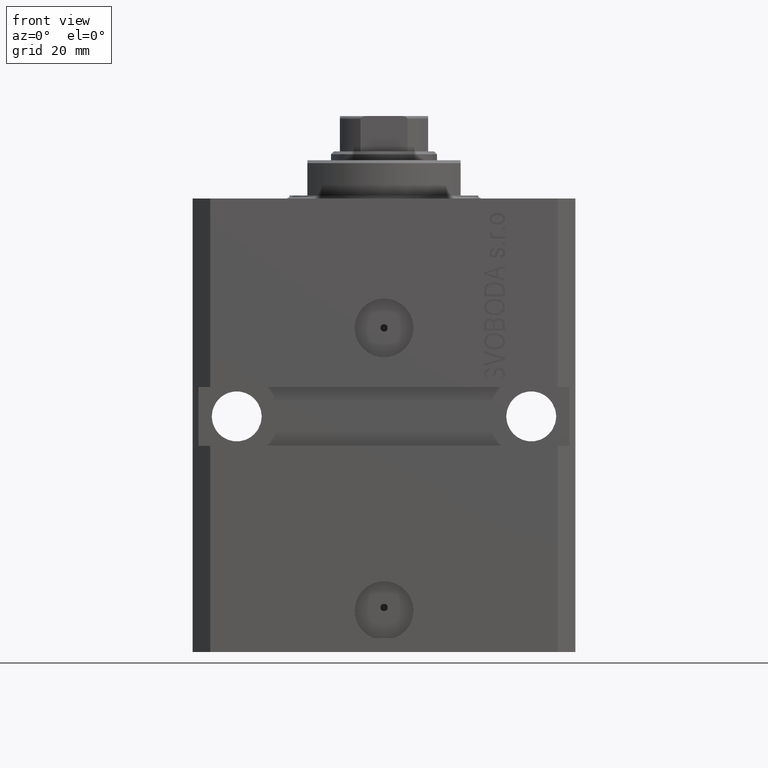
[diagram: clean part render]
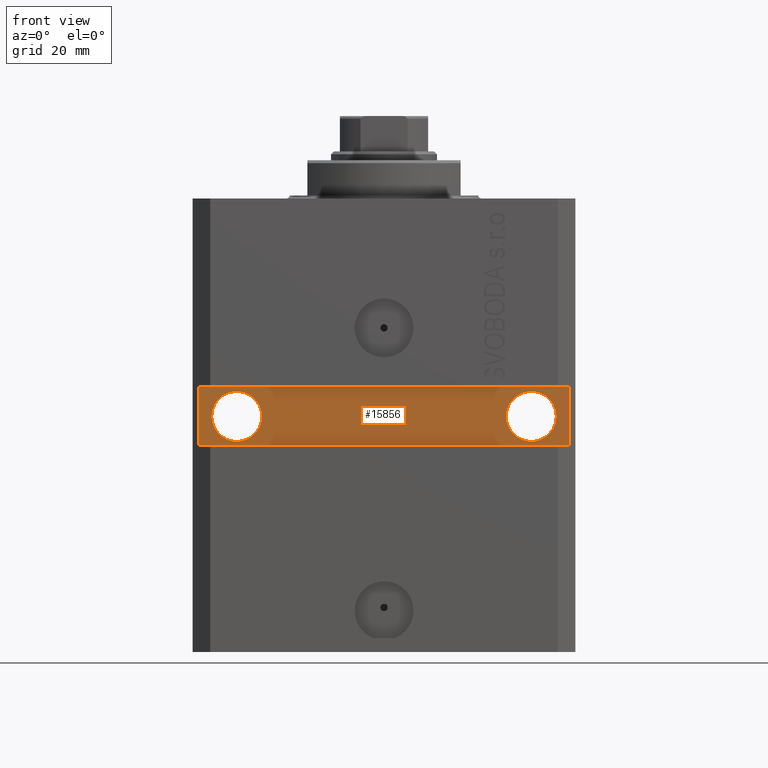
[diagram: same view with one face highlighted and labeled with its STEP entity id]
A machine part, front view. The second image highlights one B-rep face of the part: STEP entity #15856.
In plain terms, the highlighted planar face has unit normal (0, -1, 0).
Its self-contained STEP definition (entity closure, byte-faithful):
#181 = VERTEX_POINT ( 'NONE', #16915 ) ;
#200 = EDGE_CURVE ( 'NONE', #30496, #11029, #43470, .T. ) ;
#388 = DIRECTION ( 'NONE',  ( 1.394545208792185644E-16, -1.000000000000000000, 1.232595164407830946E-32 ) ) ;
#804 = CARTESIAN_POINT ( 'NONE',  ( -24.99999999999999289, -20.49999999999950262, -37.00000000000000000 ) ) ;
#868 = DIRECTION ( 'NONE',  ( 1.000000000000000000, 0.000000000000000000, 0.000000000000000000 ) ) ;
#942 = CARTESIAN_POINT ( 'NONE',  ( 29.24999999998905764, -20.49999999999949551, -36.99999999999999289 ) ) ;
#1659 = ORIENTED_EDGE ( 'NONE', *, *, #13771, .F. ) ;
#2871 = VECTOR ( 'NONE', #9926, 1000.000000000000000 ) ;
#3465 = LINE ( 'NONE', #36357, #39360 ) ;
#3545 = VERTEX_POINT ( 'NONE', #41543 ) ;
#4062 = EDGE_LOOP ( 'NONE', ( #15849, #41541, #14779, #1659 ) ) ;
#4303 = PLANE ( 'NONE',  #44057 ) ;
#7083 = DIRECTION ( 'NONE',  ( 0.000000000000000000, 0.000000000000000000, 1.000000000000000000 ) ) ;
#7749 = VERTEX_POINT ( 'NONE', #32514 ) ;
#7911 = AXIS2_PLACEMENT_3D ( 'NONE', #40934, #388, #868 ) ;
#8345 = EDGE_CURVE ( 'NONE', #25670, #3545, #38051, .T. ) ;
#8544 = ORIENTED_EDGE ( 'NONE', *, *, #31520, .F. ) ;
#8941 = CIRCLE ( 'NONE', #38664, 4.249999999993782751 ) ;
#9440 = DIRECTION ( 'NONE',  ( 1.101411730780568590E-16, -1.000000000000000000, 0.000000000000000000 ) ) ;
#9926 = DIRECTION ( 'NONE',  ( 0.000000000000000000, 0.000000000000000000, -1.000000000000000000 ) ) ;
#10082 = VECTOR ( 'NONE', #7083, 1000.000000000000000 ) ;
#11029 = VERTEX_POINT ( 'NONE', #942 ) ;
#11601 = CARTESIAN_POINT ( 'NONE',  ( -31.49999999999650413, -20.49999999999950262, -77.00000000000000000 ) ) ;
#11978 = EDGE_CURVE ( 'NONE', #7749, #35537, #3465, .T. ) ;
#12913 = VERTEX_POINT ( 'NONE', #36604 ) ;
#13771 = EDGE_CURVE ( 'NONE', #7749, #3545, #28514, .T. ) ;
#13774 = AXIS2_PLACEMENT_3D ( 'NONE', #23836, #20018, #34586 ) ;
#14779 = ORIENTED_EDGE ( 'NONE', *, *, #8345, .T. ) ;
#14785 = DIRECTION ( 'NONE',  ( 1.000000000000000000, 1.067522139062765303E-16, 0.000000000000000000 ) ) ;
#15849 = ORIENTED_EDGE ( 'NONE', *, *, #11978, .T. ) ;
#15856 = ADVANCED_FACE ( 'NONE', ( #22411, #36497, #36979 ), #4303, .T. ) ;
#16915 = CARTESIAN_POINT ( 'NONE',  ( -20.75000000000621014, -20.49999999999950262, -37.00000000000000000 ) ) ;
#18958 = LINE ( 'NONE', #11601, #10082 ) ;
#20018 = DIRECTION ( 'NONE',  ( 1.394545208792185644E-16, -1.000000000000000000, 1.232595164407830946E-32 ) ) ;
#20130 = DIRECTION ( 'NONE',  ( 1.000000000000000000, 1.067522139062765303E-16, 1.067522139062765303E-16 ) ) ;
#20834 = DIRECTION ( 'NONE',  ( 1.000000000000000000, 0.000000000000000000, 0.000000000000000000 ) ) ;
#22411 = FACE_BOUND ( 'NONE', #28037, .T. ) ;
#22720 = DIRECTION ( 'NONE',  ( 1.101411730780568590E-16, -1.000000000000000000, 0.000000000000000000 ) ) ;
#23836 = CARTESIAN_POINT ( 'NONE',  ( 25.00000000000000711, -20.49999999999949551, -36.99999999999999289 ) ) ;
#23960 = CARTESIAN_POINT ( 'NONE',  ( -24.99999999999999289, -20.49999999999950262, -37.00000000000000000 ) ) ;
#25600 = CARTESIAN_POINT ( 'NONE',  ( -31.49999999999650413, -20.49999999999950262, -32.00000000000000000 ) ) ;
#25670 = VERTEX_POINT ( 'NONE', #37663 ) ;
#27560 = ORIENTED_EDGE ( 'NONE', *, *, #200, .F. ) ;
#27756 = EDGE_CURVE ( 'NONE', #25670, #35537, #18958, .T. ) ;
#28037 = EDGE_LOOP ( 'NONE', ( #8544, #27560 ) ) ;
#28514 = LINE ( 'NONE', #46175, #2871 ) ;
#29419 = DIRECTION ( 'NONE',  ( -1.000000000000000000, -1.067522139062765303E-16, 1.067522139062765303E-16 ) ) ;
#30496 = VERTEX_POINT ( 'NONE', #33288 ) ;
#31520 = EDGE_CURVE ( 'NONE', #11029, #30496, #41412, .T. ) ;
#32514 = CARTESIAN_POINT ( 'NONE',  ( 31.49999999999651124, -20.49999999999949196, -32.00000000000000711 ) ) ;
#32681 = CARTESIAN_POINT ( 'NONE',  ( 2.166708070385810581E-15, -20.49999999999949907, 0.000000000000000000 ) ) ;
#33288 = CARTESIAN_POINT ( 'NONE',  ( 20.75000000001095657, -20.49999999999949551, -36.99999999999999289 ) ) ;
#34217 = CARTESIAN_POINT ( 'NONE',  ( -32.49999999999650413, -20.49999999999949907, -41.99999999999999289 ) ) ;
#34586 = DIRECTION ( 'NONE',  ( 1.000000000000000000, 0.000000000000000000, 0.000000000000000000 ) ) ;
#34851 = EDGE_CURVE ( 'NONE', #12913, #181, #8941, .T. ) ;
#35537 = VERTEX_POINT ( 'NONE', #25600 ) ;
#36357 = CARTESIAN_POINT ( 'NONE',  ( 32.49999999999650413, -20.49999999999949196, -32.00000000000000711 ) ) ;
#36497 = FACE_BOUND ( 'NONE', #38285, .T. ) ;
#36604 = CARTESIAN_POINT ( 'NONE',  ( -29.24999999999377920, -20.49999999999950262, -37.00000000000000000 ) ) ;
#36979 = FACE_OUTER_BOUND ( 'NONE', #4062, .T. ) ;
#37663 = CARTESIAN_POINT ( 'NONE',  ( -31.49999999999650413, -20.49999999999949907, -41.99999999999999289 ) ) ;
#37841 = VECTOR ( 'NONE', #20130, 1000.000000000000000 ) ;
#38051 = LINE ( 'NONE', #34217, #37841 ) ;
#38285 = EDGE_LOOP ( 'NONE', ( #40958, #42778 ) ) ;
#38383 = EDGE_CURVE ( 'NONE', #181, #12913, #41792, .T. ) ;
#38664 = AXIS2_PLACEMENT_3D ( 'NONE', #23960, #9440, #20834 ) ;
#39360 = VECTOR ( 'NONE', #29419, 1000.000000000000000 ) ;
#40648 = DIRECTION ( 'NONE',  ( 1.000000000000000000, 0.000000000000000000, 0.000000000000000000 ) ) ;
#40934 = CARTESIAN_POINT ( 'NONE',  ( 25.00000000000000711, -20.49999999999949551, -36.99999999999999289 ) ) ;
#40958 = ORIENTED_EDGE ( 'NONE', *, *, #38383, .F. ) ;
#41412 = CIRCLE ( 'NONE', #7911, 4.249999999989050536 ) ;
#41541 = ORIENTED_EDGE ( 'NONE', *, *, #27756, .F. ) ;
#41543 = CARTESIAN_POINT ( 'NONE',  ( 31.49999999999650413, -20.49999999999949196, -41.99999999999998579 ) ) ;
#41792 = CIRCLE ( 'NONE', #46332, 4.249999999993782751 ) ;
#42778 = ORIENTED_EDGE ( 'NONE', *, *, #34851, .F. ) ;
#43470 = CIRCLE ( 'NONE', #13774, 4.249999999989050536 ) ;
#44057 = AXIS2_PLACEMENT_3D ( 'NONE', #32681, #44601, #14785 ) ;
#44601 = DIRECTION ( 'NONE',  ( 1.067522139062765303E-16, -1.000000000000000000, 0.000000000000000000 ) ) ;
#46175 = CARTESIAN_POINT ( 'NONE',  ( 31.49999999999651124, -20.49999999999949551, -77.00000000000000000 ) ) ;
#46332 = AXIS2_PLACEMENT_3D ( 'NONE', #804, #22720, #40648 ) ;